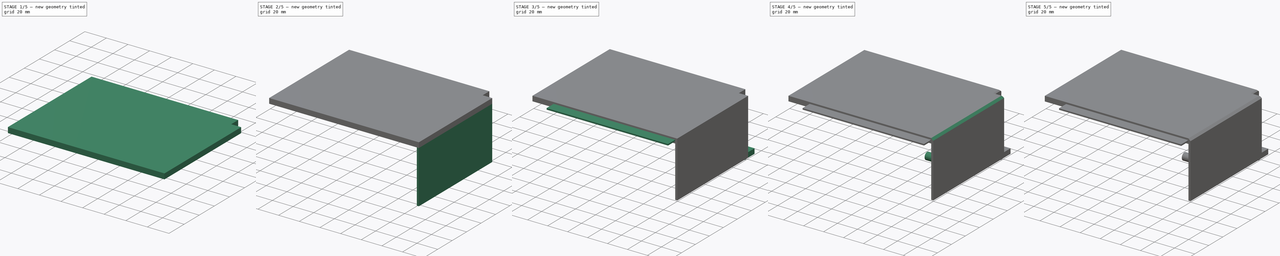
[diagram: build sequence overview — one tinted view per stage of 5, left to right]
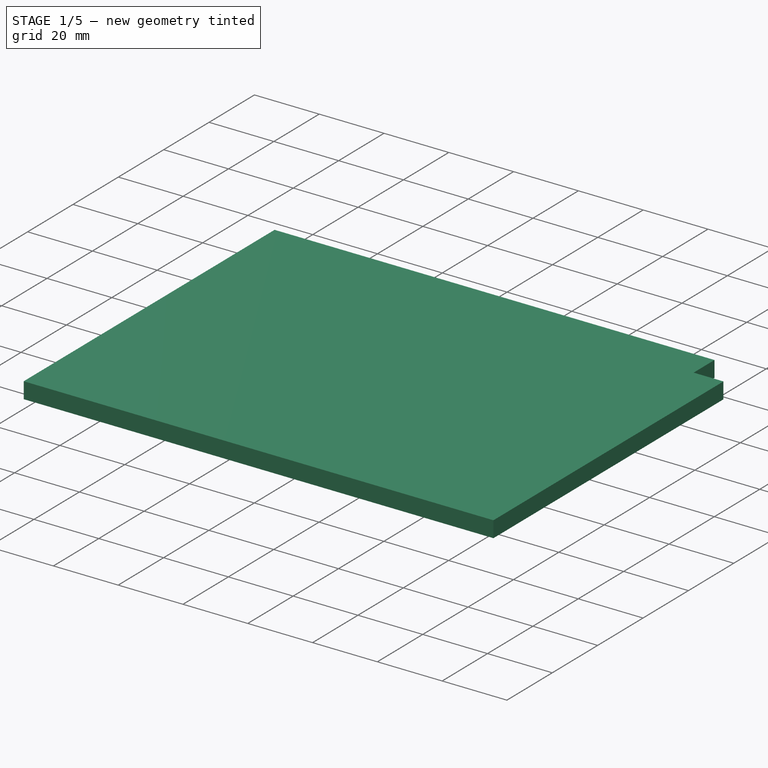
[diagram: stage 1 of 5 — iso view after this stage's code; geometry added in this stage tinted green]
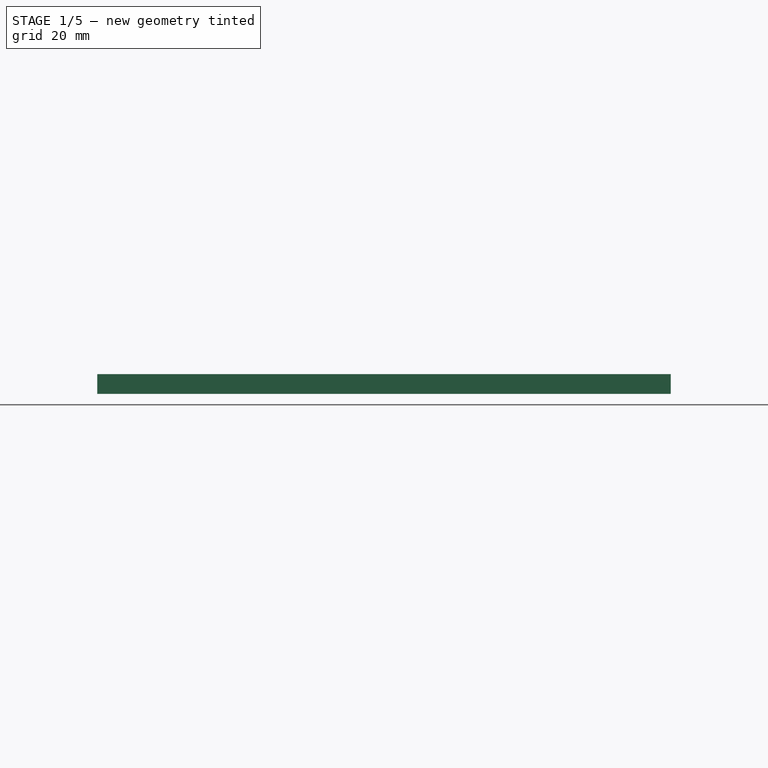
[diagram: stage 1 of 5 — front view after this stage's code; geometry added in this stage tinted green]
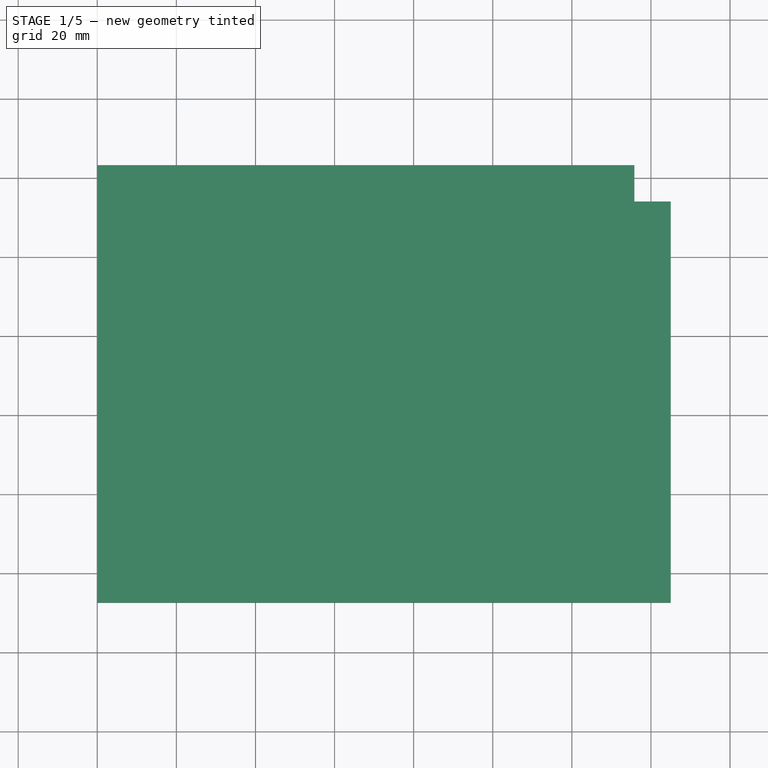
[diagram: stage 1 of 5 — top view after this stage's code; geometry added in this stage tinted green]
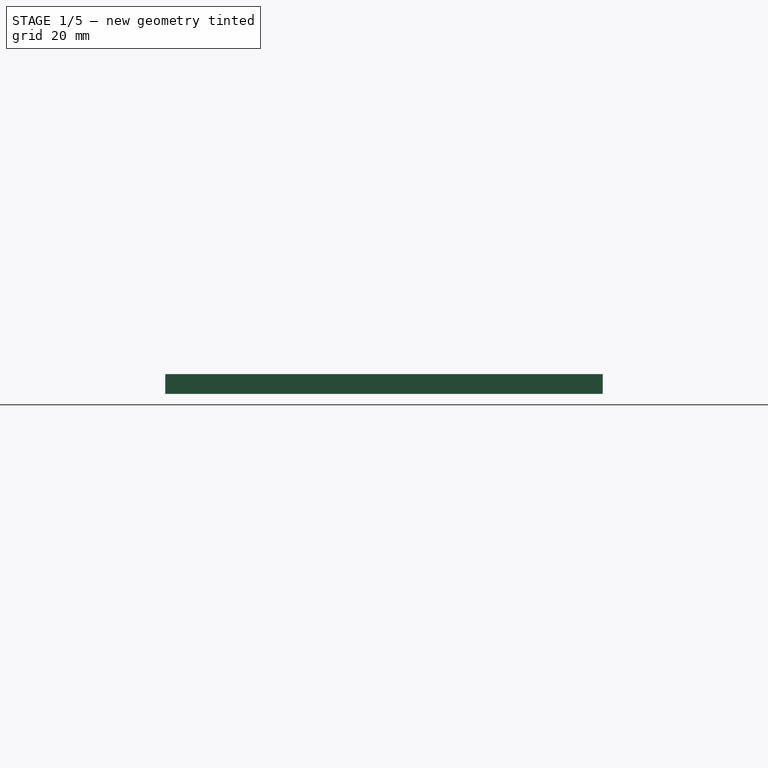
[diagram: stage 1 of 5 — right view after this stage's code; geometry added in this stage tinted green]
FCSTD DOCUMENT  (FreeCAD 2022.430R26244 +4758 (Git))
Label: FirstPartProcessorTop
License: All rights reserved
LicenseURL: http://en.wikipedia.org/wiki/All_rights_reserved
objects: Sketcher::SketchObject×15, PartDesign::Pad×11, PartDesign::Pocket×4, PartDesign::Chamfer×2, PartDesign::CoordinateSystem×1, PartDesign::Fillet×1, PartDesign::Body×1, App::Part×1
note: 71 computed .brp shape members not serialized (recipe doc carries the construction recipe); baked Part::Feature solids carry a one-line shape summary decoded from their .brp

FEATURE [PartDesign::CoordinateSystem] LCS_0
  AttacherType = Attacher::AttachEngine3D
  MapMode = 2
  Support = -> [X_Axis001]
  TreeRank = 0
FEATURE [Sketcher::SketchObject] Sketch_1
  FullyConstrained = true
  TreeRank = 0
  sketch-geometry (4):
    g0: LineSegment StartX=0 StartY=0 StartZ=0 EndX=-140 EndY=0 EndZ=0
    g1: LineSegment StartX=-140 StartY=0 StartZ=0 EndX=-140 EndY=93 EndZ=0
    g2: LineSegment StartX=-140 StartY=93 StartZ=0 EndX=0 EndY=93 EndZ=0
    g3: LineSegment StartX=0 StartY=93 StartZ=0 EndX=0 EndY=0 EndZ=0
  constraints (11):
    c: Coincident(g0,g1)
    c: Coincident(g1,g2)
    c: Coincident(g2,g3)
    c: Coincident(g3,g0)
    c: Horizontal(g0)
    c: Horizontal(g2)
    c: Vertical(g1)
    c: Vertical(g3)
    c: Coincident(g0,g-1)
    c: DistanceY(g3,g3) = 93
    c: DistanceX(g2,g2) = 140
FEATURE [PartDesign::Pad] Pad  label="MainSupport"
  AddSubType = 0
  CheckUpToFaceLimits = true
  ClaimChildren = false
  Direction = (0,0,1)
  Fit = 0
  FitJoin = 0
  InnerFit = 0
  InnerFitJoin = 0
  InnerTaperAngle = 0
  InnerTaperAngleRev = 0
  Length = 5
  Length2 = 100
  NewSolid = false
  Profile = -> Sketch_1
  Suppress = false
  TreeRank = 0
  Type = 0
  _ProfileBasedVersion = 0
FEATURE [Sketcher::SketchObject] Sketch
  ExternalGeometry = -> [Pad]
  FullyConstrained = true
  MapMode = 5
  Support = -> [XY_Plane001]
  TreeRank = 0
  sketch-geometry (4):
    g0: LineSegment StartX=0 StartY=0 StartZ=0 EndX=-140 EndY=0 EndZ=0
    g1: LineSegment StartX=-140 StartY=0 StartZ=0 EndX=-140 EndY=-7.4 EndZ=0
    g2: LineSegment StartX=-140 StartY=-7.4 StartZ=0 EndX=0 EndY=-7.4 EndZ=0
    g3: LineSegment StartX=0 StartY=-7.4 StartZ=0 EndX=0 EndY=0 EndZ=0
  constraints (10):
    c: Coincident(g0,g1)
    c: Coincident(g1,g2)
    c: Coincident(g2,g3)
    c: Coincident(g3,g0)
    c: Horizontal(g2)
    c: Vertical(g1)
    c: Vertical(g3)
    c: Coincident(g0,g-1)
    c: Coincident(g0,g-3)
    c: DistanceY(g3,g3) = 7.4
FEATURE [PartDesign::Pad] Pad001  label="ExtraGapSize"
  AddSubType = 0
  BaseFeature = -> Pad
  CheckUpToFaceLimits = true
  ClaimChildren = false
  Direction = (0,0,1)
  Fit = 0
  FitJoin = 0
  InnerFit = 0
  InnerFitJoin = 0
  InnerTaperAngle = 0
  InnerTaperAngleRev = 0
  Length = 5
  Length2 = 100
  NewSolid = false
  Profile = -> Sketch
  Suppress = false
  TreeRank = 0
  Type = 0
  _ProfileBasedVersion = 0
FEATURE [Sketcher::SketchObject] Sketch011
  ExternalGeometry = -> [Pad001]
  FullyConstrained = true
  MapMode = 5
  Placement = pos=(0,0,5) rot=(0,0,1;0rad)
  Support = -> [Pad001]
  TreeRank = 21
  sketch-geometry (6):
    g0: LineSegment StartX=-140 StartY=93 StartZ=0 EndX=-140 EndY=103.2 EndZ=0
    g1: LineSegment StartX=-140 StartY=103.2 StartZ=0 EndX=5 EndY=103.2 EndZ=0
    g2: LineSegment StartX=5 StartY=103.2 StartZ=0 EndX=5 EndY=-7.4 EndZ=0
    g3: LineSegment StartX=5 StartY=-7.4 StartZ=0 EndX=0 EndY=-7.4 EndZ=0
    g4: LineSegment StartX=0 StartY=-7.4 StartZ=0 EndX=0 EndY=93 EndZ=0
    g5: LineSegment StartX=0 StartY=93 StartZ=0 EndX=-140 EndY=93 EndZ=0
  constraints (15):
    c: Coincident(g0,g-4)
    c: Vertical(g0)
    c: Coincident(g1,g0)
    c: Horizontal(g1)
    c: Coincident(g2,g1)
    c: Vertical(g2)
    c: Coincident(g3,g2)
    c: Coincident(g3,g-3)
    c: Coincident(g4,g3)
    c: Coincident(g4,g-4)
    c: Coincident(g5,g4)
    c: Coincident(g5,g0)
    c: Horizontal(g3)
    c: DistanceY(g0,g0) = 10.2
    c: DistanceX(g3,g3) = 5
FEATURE [PartDesign::Pad] Pad005  label="ExtraSideSize"
  AddSubType = 0
  AlongSketchNormal = false
  BaseFeature = -> Pad001
  CheckUpToFaceLimits = true
  ClaimChildren = false
  Direction = (0,0,1)
  Fit = 0
  FitJoin = 0
  InnerFit = 0
  InnerFitJoin = 0
  InnerTaperAngle = 0
  InnerTaperAngleRev = 0
  Length = 5
  Length2 = 100
  Linearize = true
  NewSolid = false
  Profile = -> Sketch011
  Reversed = true
  Suppress = false
  TreeRank = 22
  Type = 0
  _ProfileBasedVersion = 1
FEATURE [Sketcher::SketchObject] Sketch002
  ExternalGeometry = -> [Pad005]
  FullyConstrained = true
  MapMode = 5
  Placement = pos=(0,0,5) rot=(0,0,1;0rad)
  TreeRank = 3
  sketch-geometry (4):
    g0: LineSegment StartX=5 StartY=103.2 StartZ=0 EndX=-4.2 EndY=103.2 EndZ=0
    g1: LineSegment StartX=-4.2 StartY=103.2 StartZ=0 EndX=-4.2 EndY=94 EndZ=0
    g2: LineSegment StartX=-4.2 StartY=94 StartZ=0 EndX=5 EndY=94 EndZ=0
    g3: LineSegment StartX=5 StartY=94 StartZ=0 EndX=5 EndY=103.2 EndZ=0
  constraints (11):
    c: Coincident(g0,g1)
    c: Coincident(g1,g2)
    c: Coincident(g2,g3)
    c: Coincident(g3,g0)
    c: Horizontal(g0)
    c: Horizontal(g2)
    c: Vertical(g1)
    c: Vertical(g3)
    c: Coincident(g0,g-3)
    c: Equal(g2,g1)
    c: DistanceX(g2,g2) = 9.2
FEATURE [PartDesign::Pocket] Pocket  label="ColumnPartHole"
  AddSubType = 1
  BaseFeature = -> Pad005
  CheckUpToFaceLimits = true
  ClaimChildren = false
  Fit = 0
  FitJoin = 0
  InnerFit = 0
  InnerFitJoin = 0
  InnerTaperAngle = 0
  InnerTaperAngleRev = 0
  Length = 5
  Length2 = 100
  Linearize = true
  NewSolid = false
  Profile = -> Sketch002
  Suppress = false
  TreeRank = 4
  Type = 0
  _ProfileBasedVersion = 1
  _Version = 1
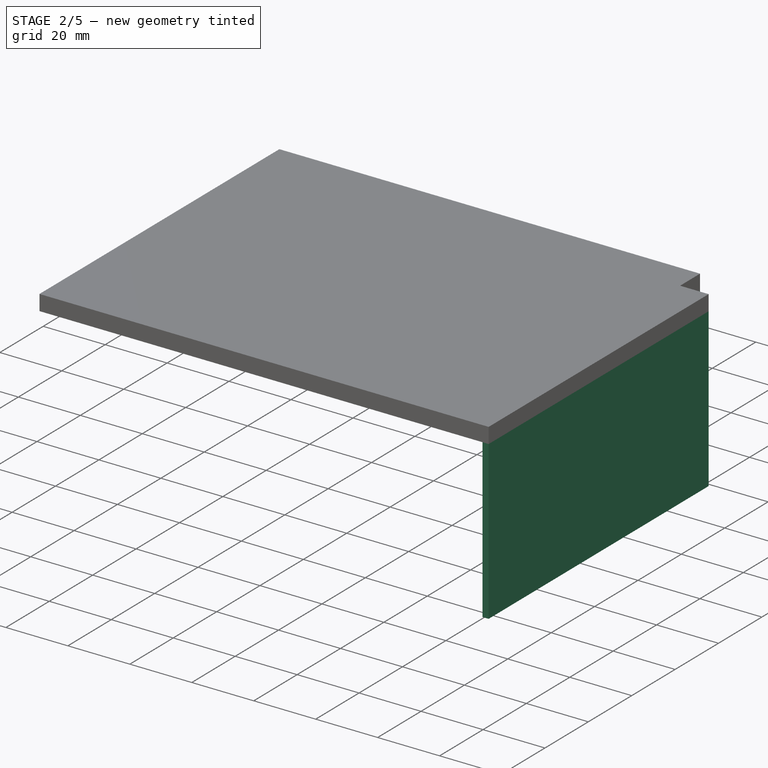
[diagram: stage 2 of 5 — iso view after this stage's code; geometry added in this stage tinted green]
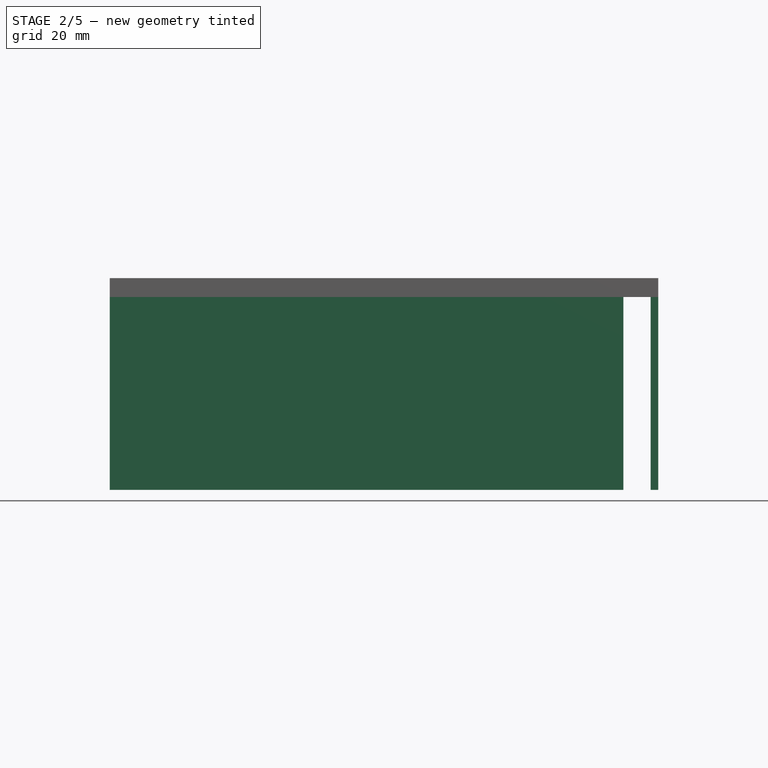
[diagram: stage 2 of 5 — front view after this stage's code; geometry added in this stage tinted green]
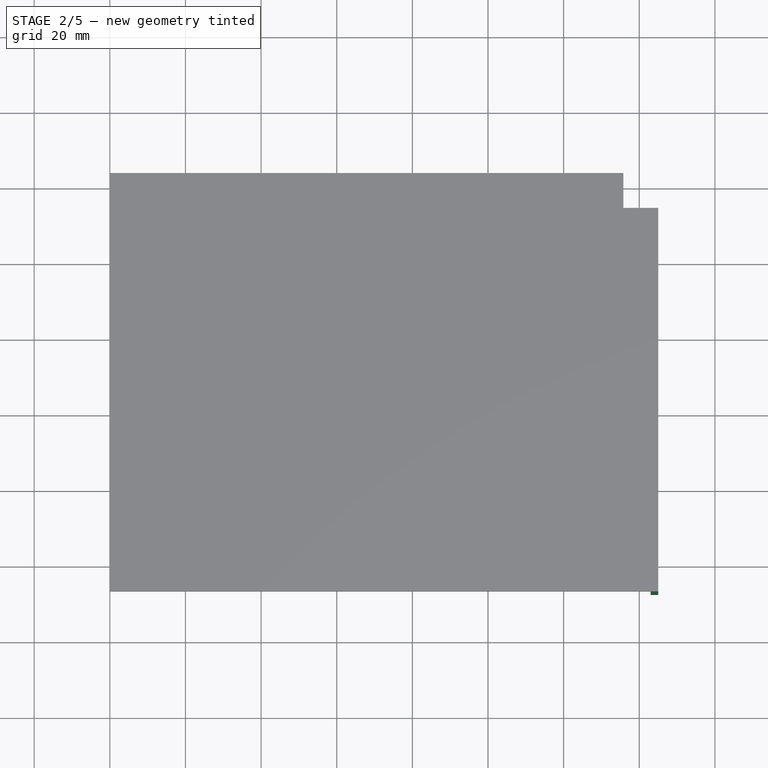
[diagram: stage 2 of 5 — top view after this stage's code; geometry added in this stage tinted green]
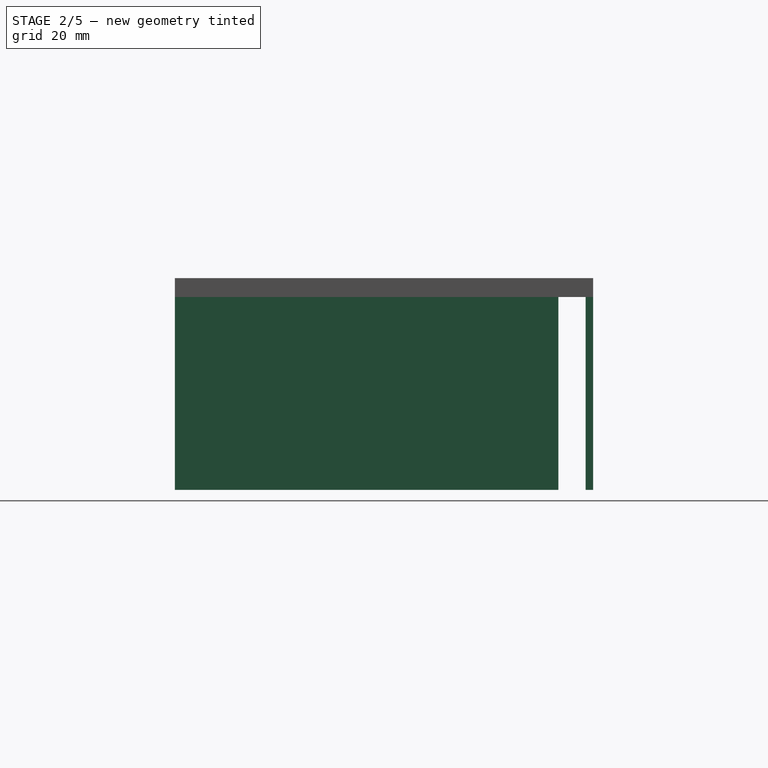
[diagram: stage 2 of 5 — right view after this stage's code; geometry added in this stage tinted green]
FEATURE [Sketcher::SketchObject] Sketch004
  ExternalGeometry = -> [Pocket]
  FullyConstrained = true
  MapMode = 5
  Placement = pos=(0,0,0) rot=(1,0,0;3.14159rad)
  TreeRank = 7
  sketch-geometry (4):
    g0: LineSegment StartX=5 StartY=-94 StartZ=0 EndX=3 EndY=-94 EndZ=0
    g1: LineSegment StartX=3 StartY=-94 StartZ=0 EndX=3 EndY=7.4 EndZ=0
    g2: LineSegment StartX=3 StartY=7.4 StartZ=0 EndX=5 EndY=7.4 EndZ=0
    g3: LineSegment StartX=5 StartY=7.4 StartZ=0 EndX=5 EndY=-94 EndZ=0
  constraints (10):
    c: Coincident(g0,g1)
    c: Coincident(g1,g2)
    c: Coincident(g2,g3)
    c: Coincident(g3,g0)
    c: Horizontal(g0)
    c: Horizontal(g2)
    c: Vertical(g1)
    c: Coincident(g0,g-3)
    c: Coincident(g2,g-3)
    c: DistanceX(g0,g0) = 2
FEATURE [PartDesign::Pad] Pad004  label="SidePanel"
  AddSubType = 0
  AlongSketchNormal = false
  BaseFeature = -> Pocket
  CheckUpToFaceLimits = true
  ClaimChildren = false
  Direction = (0,0,-1)
  Fit = 0
  FitJoin = 0
  InnerFit = 0
  InnerFitJoin = 0
  InnerTaperAngle = 0
  InnerTaperAngleRev = 0
  Length = 51
  Length2 = 100
  Linearize = true
  NewSolid = false
  Profile = -> Sketch004
  Suppress = false
  TreeRank = 8
  Type = 0
  _ProfileBasedVersion = 1
FEATURE [Sketcher::SketchObject] Sketch010
  ExternalGeometry = -> [Pad004]
  FullyConstrained = true
  MapMode = 5
  Placement = pos=(-140,0,0) rot=(0.57735,-0.57735,-0.57735;2.0944rad)
  TreeRank = 19
  sketch-geometry (4):
    g0: LineSegment StartX=-101.25 StartY=3.58 StartZ=0 EndX=-13.55 EndY=3.58 EndZ=0
    g1: LineSegment StartX=-13.55 StartY=3.58 StartZ=0 EndX=-13.55 EndY=1.5 EndZ=0
    g2: LineSegment StartX=-13.55 StartY=1.5 StartZ=0 EndX=-101.25 EndY=1.5 EndZ=0
    g3: LineSegment StartX=-101.25 StartY=1.5 StartZ=0 EndX=-101.25 EndY=3.58 EndZ=0
  constraints (12):
    c: Coincident(g0,g1)
    c: Coincident(g1,g2)
    c: Coincident(g2,g3)
    c: Coincident(g3,g0)
    c: Horizontal(g0)
    c: Horizontal(g2)
    c: Vertical(g1)
    c: Vertical(g3)
    c: DistanceX(g-3,g0) = 1.95
    c: DistanceX(g0,g-4) = 20.95
    c: DistanceY(g1,g1) = 2.08
    c: DistanceY(g-4,g1) = 1.5
FEATURE [PartDesign::Pocket] Pocket003  label="PuzzleHole1"
  AddSubType = 1
  BaseFeature = -> Pad004
  CheckUpToFaceLimits = true
  ClaimChildren = false
  Fit = 0
  FitJoin = 0
  InnerFit = 0
  InnerFitJoin = 0
  InnerTaperAngle = 0
  InnerTaperAngleRev = 0
  Length = 11
  Length2 = 100
  Linearize = true
  NewSolid = false
  Profile = -> Sketch010
  Suppress = false
  TreeRank = 20
  Type = 0
  _ProfileBasedVersion = 1
  _Version = 1
FEATURE [Sketcher::SketchObject] Sketch012
  ExternalGeometry = -> [Pocket003]
  FullyConstrained = true
  MapMode = 5
  Placement = pos=(0,0,0) rot=(1,0,0;3.14159rad)
  Support = -> [Pocket003]
  TreeRank = 23
  sketch-geometry (4):
    g0: LineSegment StartX=-140 StartY=-103.2 StartZ=0 EndX=-4.2 EndY=-103.2 EndZ=0
    g1: LineSegment StartX=-4.2 StartY=-103.2 StartZ=0 EndX=-4.2 EndY=-101.2 EndZ=0
    g2: LineSegment StartX=-4.2 StartY=-101.2 StartZ=0 EndX=-140 EndY=-101.2 EndZ=0
    g3: LineSegment StartX=-140 StartY=-101.2 StartZ=0 EndX=-140 EndY=-103.2 EndZ=0
  constraints (10):
    c: Coincident(g0,g1)
    c: Coincident(g1,g2)
    c: Coincident(g2,g3)
    c: Coincident(g3,g0)
    c: Horizontal(g2)
    c: Vertical(g1)
    c: Vertical(g3)
    c: Coincident(g0,g-3)
    c: Coincident(g-3,g0)
    c: DistanceY(g3,g3) = 2
FEATURE [PartDesign::Pad] Pad006  label="BackPanel"
  AddSubType = 0
  AlongSketchNormal = false
  BaseFeature = -> Pocket003
  CheckUpToFaceLimits = true
  ClaimChildren = false
  Direction = (0,0,-1)
  Fit = 0
  FitJoin = 0
  InnerFit = 0
  InnerFitJoin = 0
  InnerTaperAngle = 0
  InnerTaperAngleRev = 0
  Length = 51
  Length2 = 100
  Linearize = true
  NewSolid = false
  Profile = -> Sketch012
  Suppress = false
  TreeRank = 24
  Type = 0
  _ProfileBasedVersion = 1
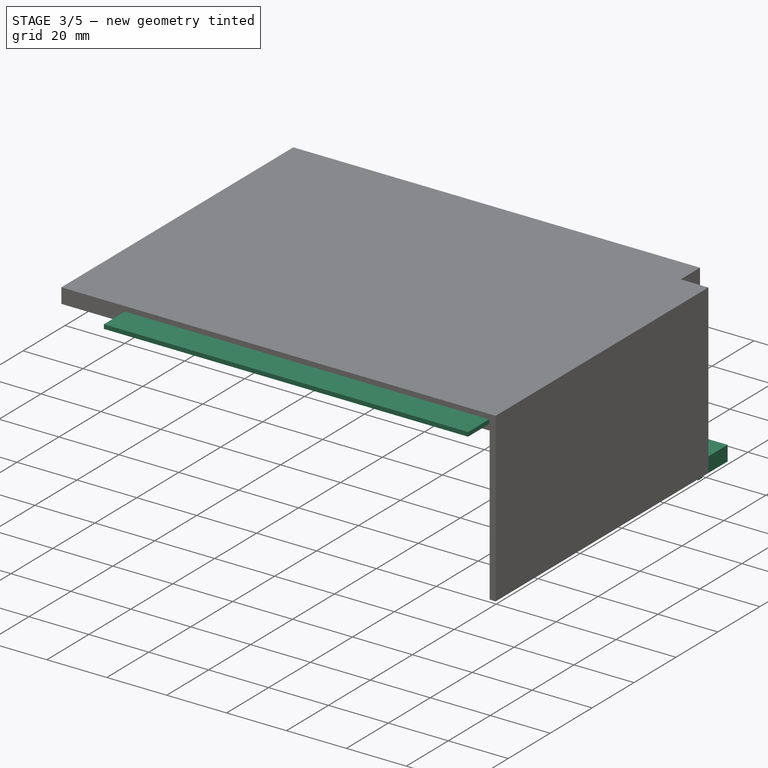
[diagram: stage 3 of 5 — iso view after this stage's code; geometry added in this stage tinted green]
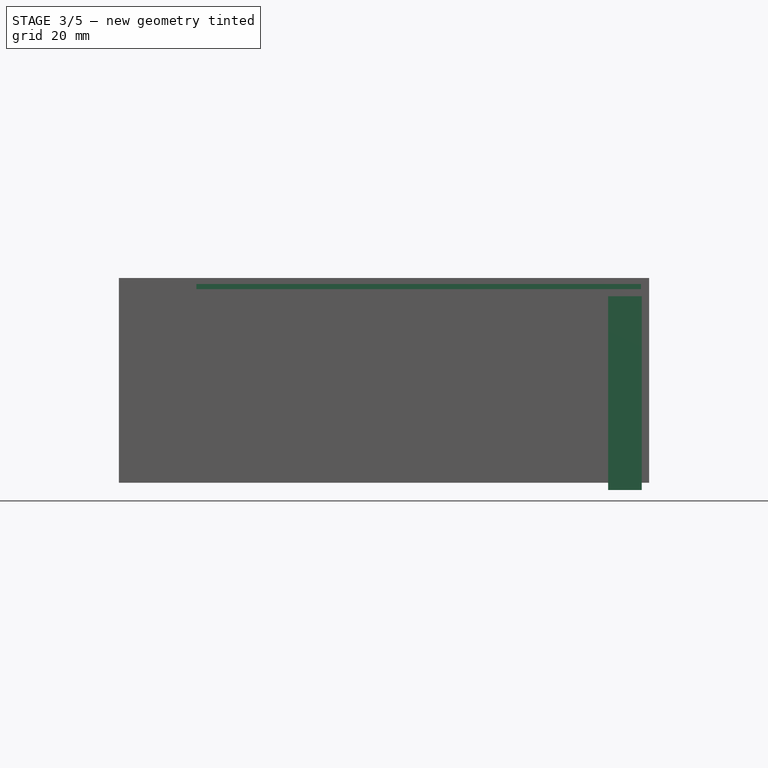
[diagram: stage 3 of 5 — front view after this stage's code; geometry added in this stage tinted green]
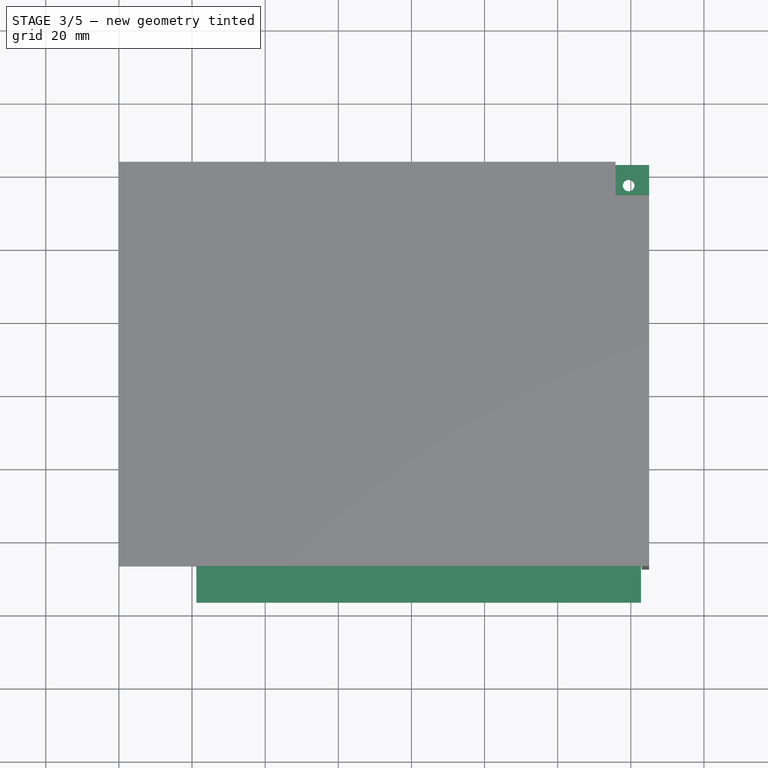
[diagram: stage 3 of 5 — top view after this stage's code; geometry added in this stage tinted green]
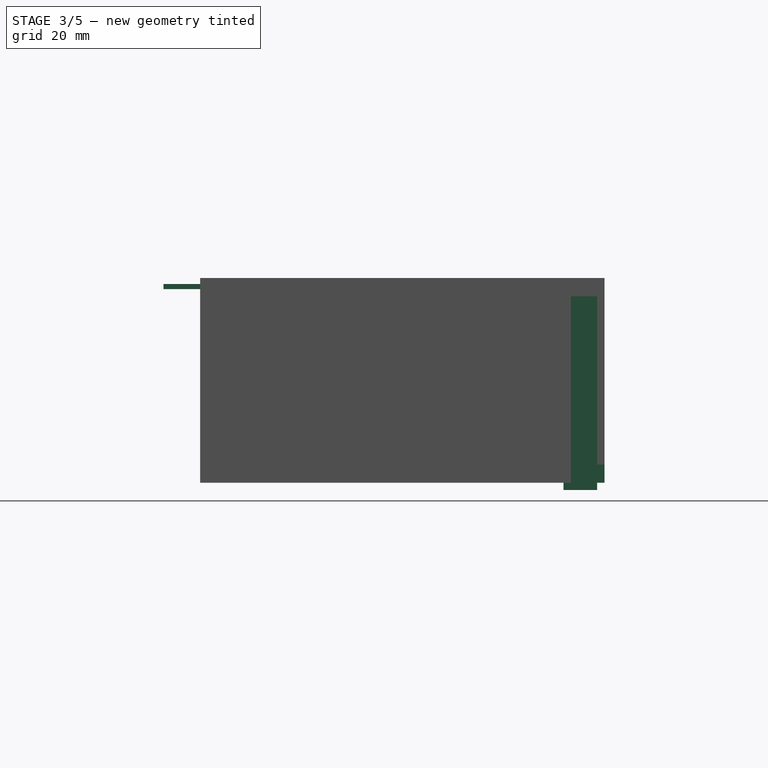
[diagram: stage 3 of 5 — right view after this stage's code; geometry added in this stage tinted green]
FEATURE [Sketcher::SketchObject] Sketch013
  ExternalGeometry = -> [Pad006]
  FullyConstrained = true
  MapMode = 5
  Placement = pos=(0,0,0) rot=(1,0,0;3.14159rad)
  Support = -> [Pad006]
  TreeRank = 25
  sketch-geometry (6):
    g0: LineSegment StartX=-4.2 StartY=-101.2 StartZ=0 EndX=-6.2 EndY=-101.2 EndZ=0
    g1: LineSegment StartX=-6.2 StartY=-101.2 StartZ=0 EndX=-6.2 EndY=-92 EndZ=0
    g2: LineSegment StartX=-6.2 StartY=-92 StartZ=0 EndX=3 EndY=-92 EndZ=0
    g3: LineSegment StartX=3 StartY=-92 StartZ=0 EndX=3 EndY=-94 EndZ=0
    g4: LineSegment StartX=-4.2 StartY=-101.2 StartZ=0 EndX=-4.2 EndY=-94 EndZ=0
    g5: LineSegment StartX=-4.2 StartY=-94 StartZ=0 EndX=3 EndY=-94 EndZ=0
  constraints (15):
    c: Coincident(g0,g-4)
    c: Horizontal(g0)
    c: Coincident(g1,g0)
    c: Vertical(g1)
    c: Coincident(g2,g1)
    c: Horizontal(g2)
    c: Coincident(g3,g2)
    c: Coincident(g3,g-3)
    c: Vertical(g3)
    c: DistanceY(g3,g3) = 2
    c: Equal(g3,g0)
    c: Coincident(g4,g0)
    c: Coincident(g4,g-4)
    c: Coincident(g5,g4)
    c: Coincident(g5,g3)
FEATURE [PartDesign::Pad] Pad007  label="ColumnPartPanel"
  AddSubType = 0
  AlongSketchNormal = false
  BaseFeature = -> Pad006
  CheckUpToFaceLimits = true
  ClaimChildren = false
  Direction = (0,0,-1)
  Fit = 0
  FitJoin = 0
  InnerFit = 0
  InnerFitJoin = 0
  InnerTaperAngle = 0
  InnerTaperAngleRev = 0
  Length = 53
  Length2 = 100
  Linearize = true
  NewSolid = false
  Profile = -> Sketch013
  Suppress = false
  TreeRank = 26
  Type = 0
  _ProfileBasedVersion = 1
FEATURE [Sketcher::SketchObject] Sketch014
  ExternalGeometry = -> [Pad007]
  FullyConstrained = true
  MapMode = 5
  Placement = pos=(0,94,0) rot=(0,0.707107,0.707107;3.14159rad)
  Support = -> [Pad007]
  TreeRank = 27
  sketch-geometry (4):
    g0: LineSegment StartX=-5 StartY=-51 StartZ=0 EndX=4.2 EndY=-51 EndZ=0
    g1: LineSegment StartX=4.2 StartY=-51 StartZ=0 EndX=4.2 EndY=-46 EndZ=0
    g2: LineSegment StartX=4.2 StartY=-46 StartZ=0 EndX=-5 EndY=-46 EndZ=0
    g3: LineSegment StartX=-5 StartY=-46 StartZ=0 EndX=-5 EndY=-51 EndZ=0
  constraints (11):
    c: Coincident(g0,g1)
    c: Coincident(g1,g2)
    c: Coincident(g2,g3)
    c: Coincident(g3,g0)
    c: Horizontal(g0)
    c: Horizontal(g2)
    c: Vertical(g1)
    c: Vertical(g3)
    c: Coincident(g0,g-3)
    c: PointOnObject(g1,g-4)
    c: DistanceY(g3,g3) = 5
FEATURE [PartDesign::Pad] Pad008  label="HoleSupport"
  AddSubType = 0
  AlongSketchNormal = false
  BaseFeature = -> Pad007
  CheckUpToFaceLimits = true
  ClaimChildren = false
  Direction = (0,1,-2e-16)
  Fit = 0
  FitJoin = 0
  InnerFit = 0
  InnerFitJoin = 0
  InnerTaperAngle = 0
  InnerTaperAngleRev = 0
  Length = 10
  Length2 = 100
  Linearize = true
  NewSolid = false
  Profile = -> Sketch014
  Suppress = false
  TreeRank = 28
  Type = 3
  UpToFace = -> Pad007 [Face30]
  _ProfileBasedVersion = 1
FEATURE [Sketcher::SketchObject] Sketch015
  ExternalGeometry = -> [Pad008]
  FullyConstrained = true
  MapMode = 5
  Placement = pos=(0,-1.02e-14,-46) rot=(0,0,1;0rad)
  Support = -> [Pad008]
  TreeRank = 29
  sketch-geometry (3):
    g0: LineSegment [constr] StartX=-4.2 StartY=97.6 StartZ=0 EndX=-0.6 EndY=97.6 EndZ=0
    g1: LineSegment [constr] StartX=-0.6 StartY=97.6 StartZ=0 EndX=-0.6 EndY=94 EndZ=0
    g2: Circle CenterX=-0.6 CenterY=97.6 CenterZ=0 NormalX=0 NormalY=0 NormalZ=1 AngleXU=0 Radius=1.6
  constraints (9):
    c: PointOnObject(g0,g-3)
    c: Horizontal(g0)
    c: Coincident(g1,g0)
    c: PointOnObject(g1,g-4)
    c: Vertical(g1)
    c: DistanceY(g-4,g0) = 3.6
    c: DistanceX(g-4,g1) = 3.6
    c: Coincident(g2,g0)
    c: Diameter(g2) = 3.2
FEATURE [PartDesign::Pocket] Pocket004  label="Hole"
  AddSubType = 1
  BaseFeature = -> Pad008
  CheckUpToFaceLimits = true
  ClaimChildren = false
  Fit = 0
  FitJoin = 0
  InnerFit = 0
  InnerFitJoin = 0
  InnerTaperAngle = 0
  InnerTaperAngleRev = 0
  Length = 5
  Length2 = 100
  Linearize = true
  NewSolid = false
  Profile = -> Sketch015
  Suppress = false
  TreeRank = 30
  Type = 2
  _ProfileBasedVersion = 1
  _Version = 1
FEATURE [Sketcher::SketchObject] Sketch016
  ExternalGeometry = -> [Pocket004]
  FullyConstrained = true
  MapMode = 5
  Placement = pos=(0,-7.4,0) rot=(1,0,0;1.5708rad)
  Support = -> [Pocket004]
  TreeRank = 31
  sketch-geometry (4):
    g0: LineSegment StartX=-118.8 StartY=3.34 StartZ=0 EndX=2.8 EndY=3.34 EndZ=0
    g1: LineSegment StartX=2.8 StartY=3.34 StartZ=0 EndX=2.8 EndY=1.94 EndZ=0
    g2: LineSegment StartX=2.8 StartY=1.94 StartZ=0 EndX=-118.8 EndY=1.94 EndZ=0
    g3: LineSegment StartX=-118.8 StartY=1.94 StartZ=0 EndX=-118.8 EndY=3.34 EndZ=0
  constraints (12):
    c: Coincident(g0,g1)
    c: Coincident(g1,g2)
    c: Coincident(g2,g3)
    c: Coincident(g3,g0)
    c: Horizontal(g0)
    c: Horizontal(g2)
    c: Vertical(g1)
    c: Vertical(g3)
    c: DistanceX(g0,g-3) = 2.2
    c: DistanceY(g1,g1) = 1.4
    c: DistanceX(g-4,g0) = 21.2
    c: DistanceY(g-4,g2) = 1.94
FEATURE [PartDesign::Pad] Pad009  label="Puzzle1"
  AddSubType = 0
  AlongSketchNormal = false
  BaseFeature = -> Pocket004
  CheckUpToFaceLimits = true
  ClaimChildren = false
  Direction = (0,-1,2e-16)
  Fit = 0
  FitJoin = 0
  InnerFit = 0
  InnerFitJoin = 0
  InnerTaperAngle = 0
  InnerTaperAngleRev = 0
  Length = 10
  Length2 = 100
  Linearize = true
  NewSolid = false
  Profile = -> Sketch016
  Suppress = false
  TreeRank = 32
  Type = 0
  _ProfileBasedVersion = 1
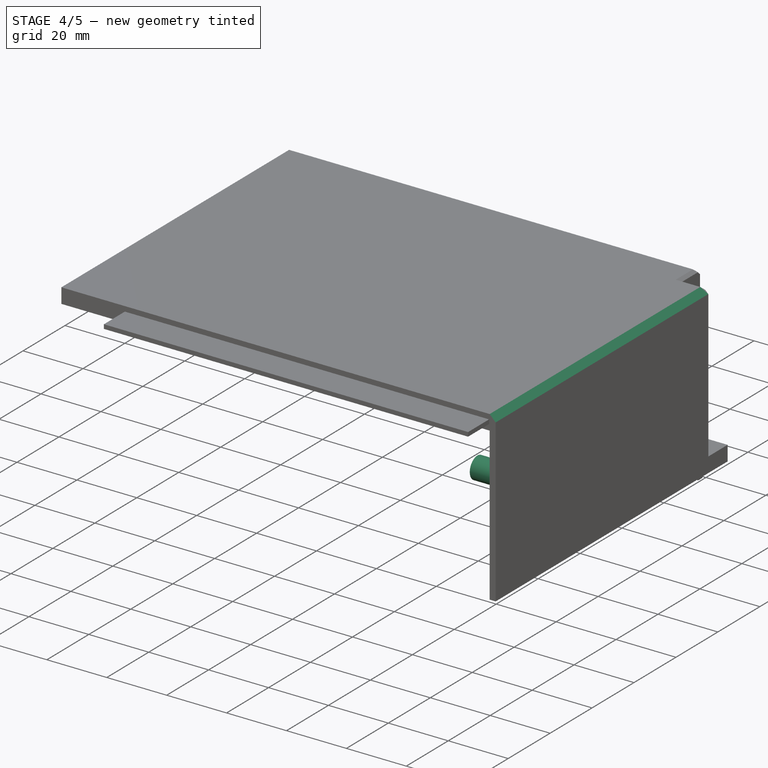
[diagram: stage 4 of 5 — iso view after this stage's code; geometry added in this stage tinted green]
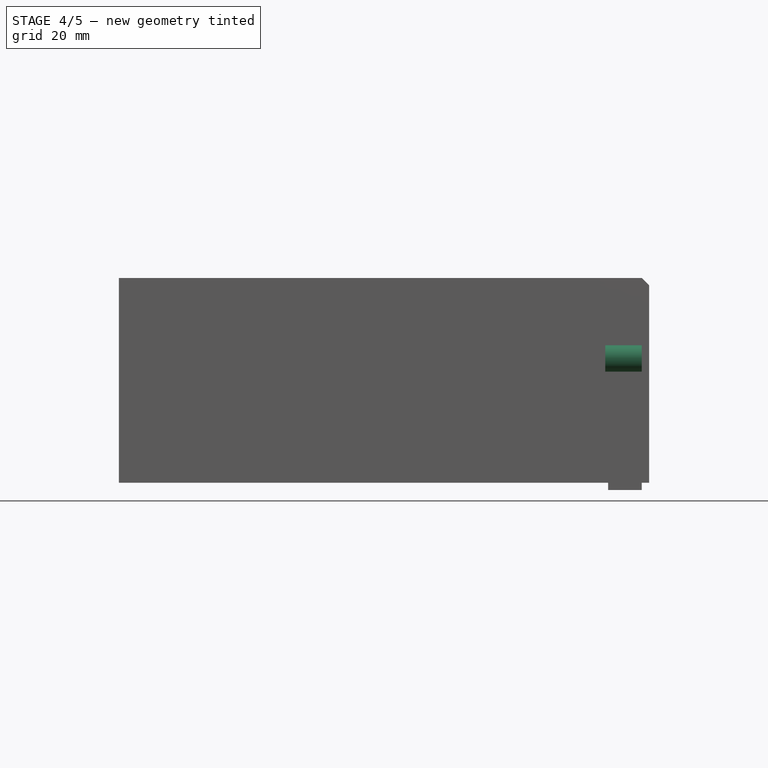
[diagram: stage 4 of 5 — front view after this stage's code; geometry added in this stage tinted green]
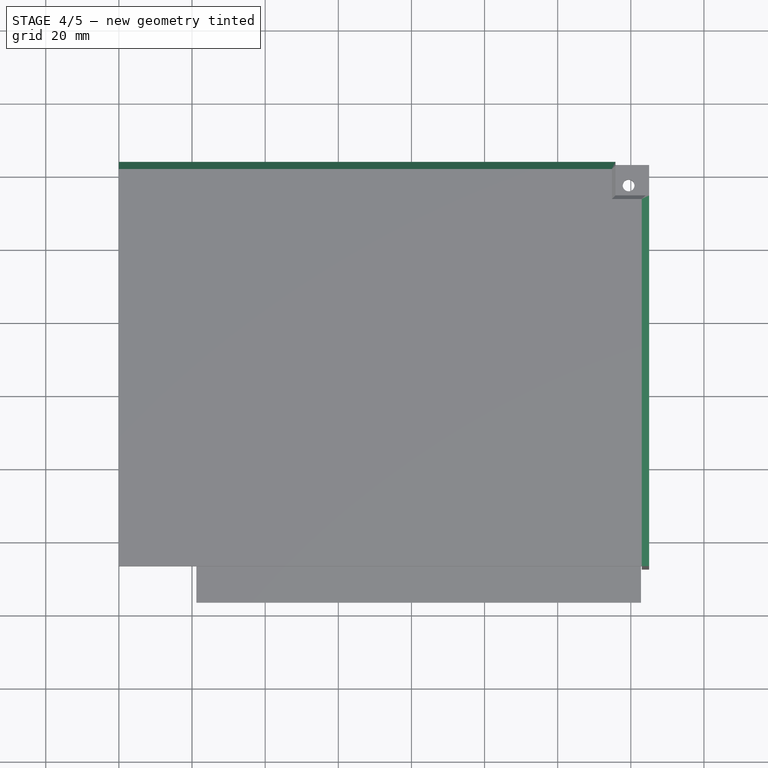
[diagram: stage 4 of 5 — top view after this stage's code; geometry added in this stage tinted green]
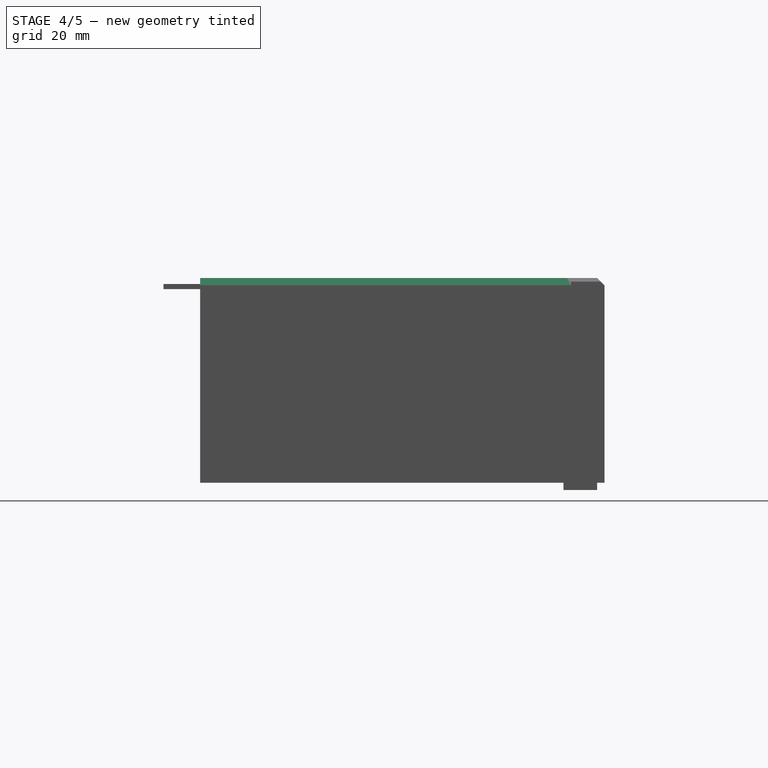
[diagram: stage 4 of 5 — right view after this stage's code; geometry added in this stage tinted green]
FEATURE [PartDesign::Chamfer] Chamfer
  AddSubType = 0
  Angle = 45
  Base = -> Pad009 [Edge52,Edge49]
  BaseFeature = -> Pad009
  ChamferType = 0
  FlipDirection = false
  NewSolid = false
  Size = 2
  Size2 = 1
  SupportTransform = false
  Suppress = false
  TreeRank = 33
FEATURE [PartDesign::Chamfer] Chamfer001
  AddSubType = 0
  Angle = 45
  Base = -> Chamfer [Edge13,Edge15]
  BaseFeature = -> Chamfer
  ChamferType = 0
  FlipDirection = false
  NewSolid = false
  Size = 0.99
  Size2 = 1
  SupportTransform = false
  Suppress = false
  TreeRank = 34
FEATURE [Sketcher::SketchObject] Sketch017
  ExternalGeometry = -> [Chamfer001]
  FullyConstrained = true
  MapMode = 5
  Placement = pos=(3,0,0) rot=(0.57735,-0.57735,-0.57735;2.0944rad)
  Support = -> [Chamfer001]
  TreeRank = 35
  sketch-geometry (3):
    g0: LineSegment [constr] StartX=-88 StartY=-17 StartZ=0 EndX=-1 EndY=-17 EndZ=0
    g1: Circle CenterX=-88 CenterY=-17 CenterZ=0 NormalX=0 NormalY=0 NormalZ=1 AngleXU=0 Radius=3.6
    g2: Circle CenterX=-1 CenterY=-17 CenterZ=0 NormalX=0 NormalY=0 NormalZ=1 AngleXU=0 Radius=3.6
  constraints (8):
    c: Horizontal(g0)
    c: DistanceY(g-3,g0) = 34
    c: Coincident(g1,g0)
    c: Coincident(g2,g0)
    c: Diameter(g2) = 7.2
    c: Diameter(g1) = 7.2
    c: DistanceX(g0,g0) = 87
    c: DistanceX(g-3,g1) = 4
FEATURE [PartDesign::Pad] Pad010  label="PowerSupplyColumn"
  AddSubType = 0
  AlongSketchNormal = false
  BaseFeature = -> Chamfer001
  CheckUpToFaceLimits = true
  ClaimChildren = false
  Direction = (-1,0,0)
  Fit = 0
  FitJoin = 0
  InnerFit = 0
  InnerFitJoin = 0
  InnerTaperAngle = 0
  InnerTaperAngleRev = 0
  Length = 10
  Length2 = 100
  Linearize = true
  NewSolid = false
  Profile = -> Sketch017
  Suppress = false
  TreeRank = 36
  Type = 0
  _ProfileBasedVersion = 1
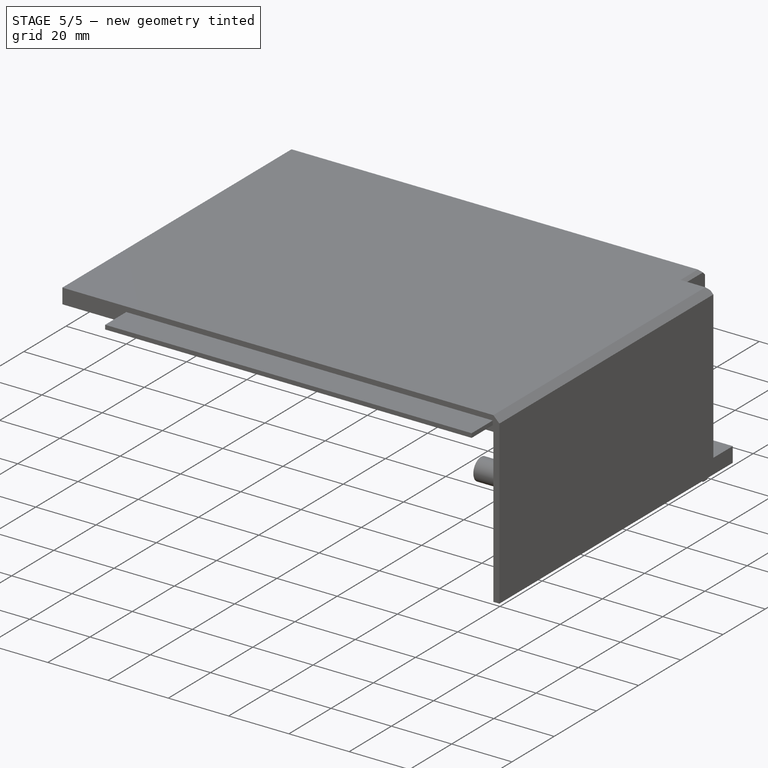
[diagram: stage 5 of 5 — iso view after this stage's code; geometry added in this stage tinted green]
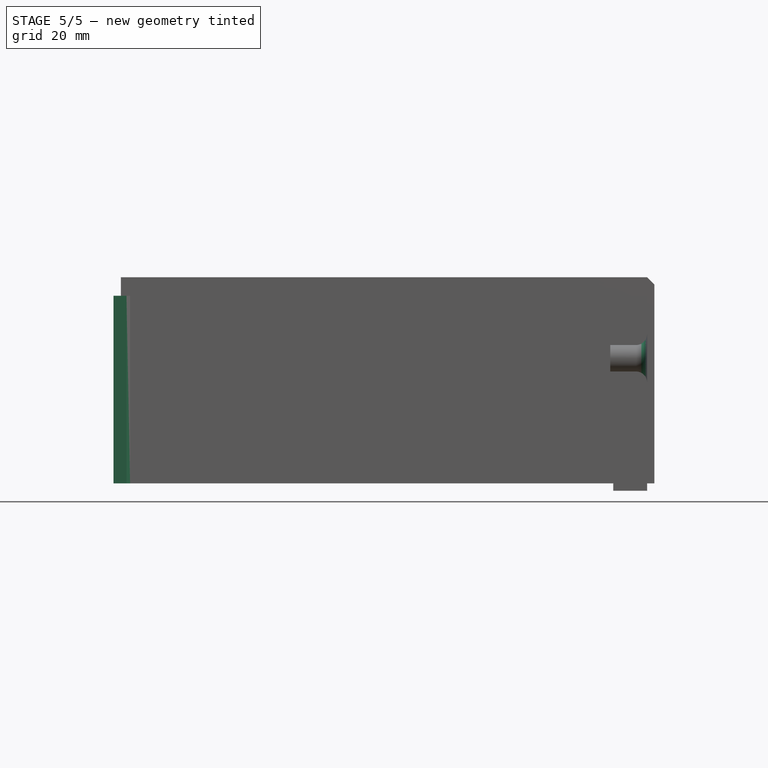
[diagram: stage 5 of 5 — front view after this stage's code; geometry added in this stage tinted green]
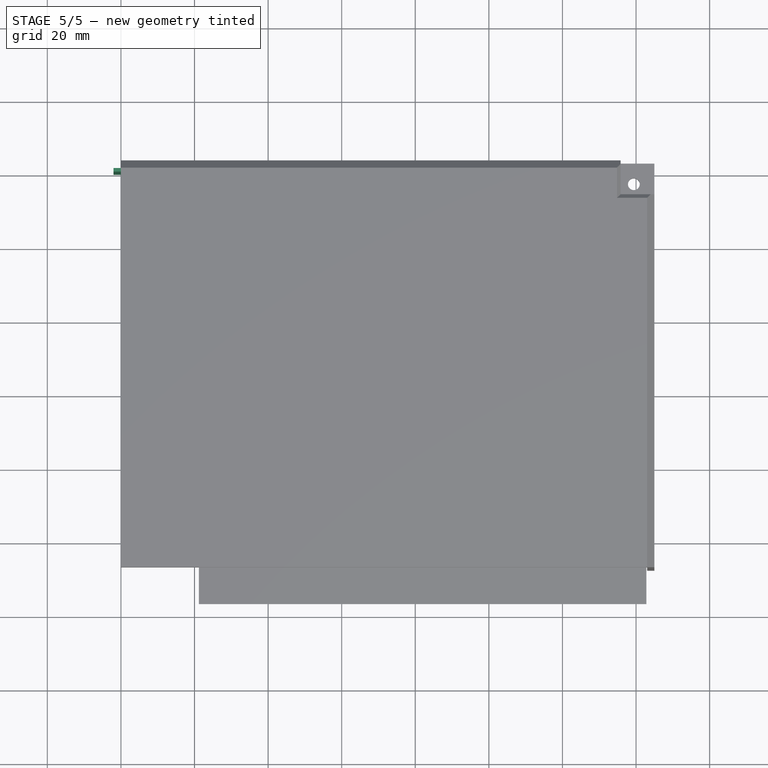
[diagram: stage 5 of 5 — top view after this stage's code; geometry added in this stage tinted green]
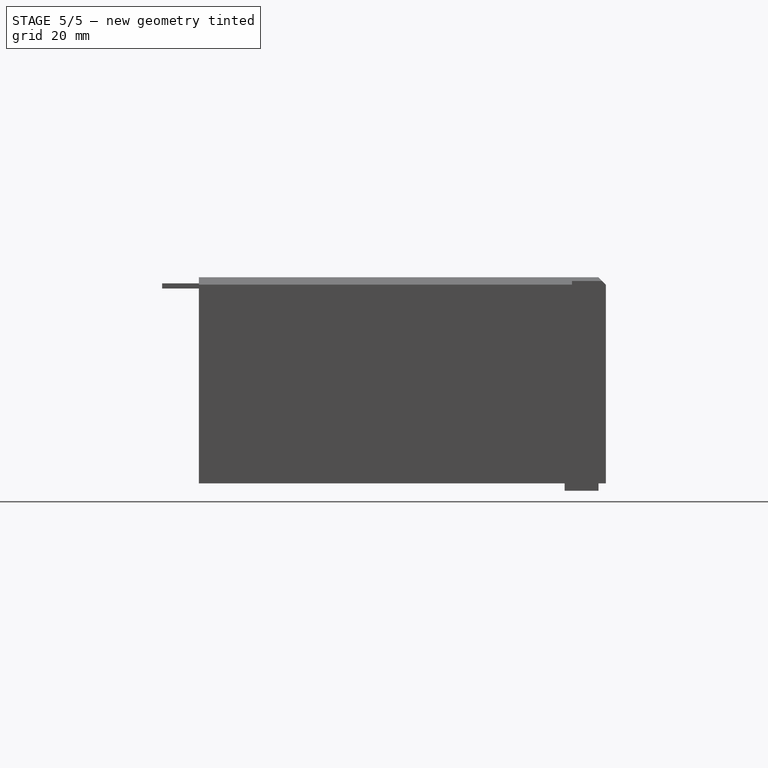
[diagram: stage 5 of 5 — right view after this stage's code; geometry added in this stage tinted green]
FEATURE [Sketcher::SketchObject] Sketch018
  ExternalGeometry = -> [Pad010]
  FullyConstrained = true
  MapMode = 5
  Placement = pos=(3,0,0) rot=(0.57735,-0.57735,-0.57735;2.0944rad)
  Support = -> [Pad010]
  TreeRank = 37
  sketch-geometry (6):
    g0: LineSegment StartX=-85.0067 StartY=-15 StartZ=0 EndX=-3.99333 EndY=-15 EndZ=0
    g1: LineSegment StartX=-85.0067 StartY=-19 StartZ=0 EndX=-3.99333 EndY=-19 EndZ=0
    g2: LineSegment [constr] StartX=-85.0067 StartY=-15 StartZ=0 EndX=-85.0067 EndY=-19 EndZ=0
    g3: LineSegment [constr] StartX=-3.99333 StartY=-15 StartZ=0 EndX=-3.99333 EndY=-19 EndZ=0
    g4: ArcOfCircle CenterX=-88 CenterY=-17 CenterZ=0 NormalX=0 NormalY=0 NormalZ=1 AngleXU=0 Radius=3.6 StartAngle=5.69415 EndAngle=6.87222
    g5: ArcOfCircle CenterX=-1 CenterY=-17 CenterZ=0 NormalX=0 NormalY=0 NormalZ=1 AngleXU=0 Radius=3.6 StartAngle=2.55256 EndAngle=3.73062
  constraints (16):
    c: PointOnObject(g0,g-3)
    c: PointOnObject(g0,g-4)
    c: Horizontal(g0)
    c: Horizontal(g1)
    c: Coincident(g2,g0)
    c: Coincident(g2,g1)
    c: Vertical(g2)
    c: Coincident(g3,g0)
    c: Coincident(g3,g1)
    c: Coincident(g4,g-3)
    c: Coincident(g4,g0)
    c: Coincident(g4,g1)
    c: Coincident(g5,g-4)
    c: Coincident(g5,g0)
    c: Coincident(g5,g1)
    c: DistanceY(g2,g2) = 4
FEATURE [PartDesign::Pad] Pad011  label="PowerSupplyColumnSupport"
  AddSubType = 0
  AlongSketchNormal = false
  BaseFeature = -> Pad010
  CheckUpToFaceLimits = true
  ClaimChildren = false
  Direction = (-1,0,0)
  Fit = 0
  FitJoin = 0
  InnerFit = 0
  InnerFitJoin = 0
  InnerTaperAngle = 0
  InnerTaperAngleRev = 0
  Length = 5
  Length2 = 100
  Linearize = true
  NewSolid = false
  Profile = -> Sketch018
  Suppress = false
  TreeRank = 38
  Type = 0
  _ProfileBasedVersion = 1
FEATURE [PartDesign::Fillet] Fillet
  AddSubType = 0
  Base = -> Pad011 [Edge116,Edge115,Edge117,Edge119,Edge118]
  BaseFeature = -> Pad011
  NewSolid = false
  Radius = 3
  SupportTransform = false
  Suppress = false
  TreeRank = 39
FEATURE [Sketcher::SketchObject] Sketch019
  ExternalGeometry = -> [Fillet]
  FullyConstrained = true
  MapMode = 5
  Placement = pos=(-7,0,0) rot=(-0.57735,0.57735,0.57735;4.18879rad)
  Support = -> [Fillet]
  TreeRank = 40
  sketch-geometry (2):
    g0: Circle CenterX=-88 CenterY=-17 CenterZ=0 NormalX=0 NormalY=0 NormalZ=1 AngleXU=0 Radius=2
    g1: Circle CenterX=-1 CenterY=-17 CenterZ=0 NormalX=0 NormalY=0 NormalZ=1 AngleXU=0 Radius=2
  constraints (4):
    c: Coincident(g0,g-4)
    c: Coincident(g1,g-3)
    c: Diameter(g0) = 4
    c: Diameter(g1) = 4
FEATURE [PartDesign::Pocket] Pocket005  label="InsertsHole"
  AddSubType = 1
  BaseFeature = -> Fillet
  CheckUpToFaceLimits = true
  ClaimChildren = false
  Fit = 0
  FitJoin = 0
  InnerFit = 0
  InnerFitJoin = 0
  InnerTaperAngle = 0
  InnerTaperAngleRev = 0
  Length = 6.7
  Length2 = 100
  Linearize = true
  NewSolid = false
  Profile = -> Sketch019
  Suppress = false
  TreeRank = 41
  Type = 0
  _ProfileBasedVersion = 1
  _Version = 1
FEATURE [Sketcher::SketchObject] Sketch020
  ExternalGeometry = -> [Pocket005]
  FullyConstrained = true
  MapMode = 5
  Placement = pos=(0,0,0) rot=(1,0,0;3.14159rad)
  Support = -> [Pocket005]
  TreeRank = 42
  sketch-geometry (7):
    g0: LineSegment StartX=-140 StartY=-101.2 StartZ=0 EndX=-142 EndY=-101.2 EndZ=0
    g1: LineSegment StartX=-142 StartY=-101.2 StartZ=0 EndX=-142 EndY=-100.2 EndZ=0
    g2: LineSegment StartX=-142 StartY=-100.2 StartZ=0 EndX=-138.5 EndY=-100.2 EndZ=0
    g3: LineSegment [constr] StartX=-138.5 StartY=-100.2 StartZ=0 EndX=-138.5 EndY=-101.2 EndZ=0
    g4: LineSegment StartX=-140 StartY=-101.2 StartZ=0 EndX=-138.5 EndY=-101.2 EndZ=0
    g5: LineSegment StartX=-138.5 StartY=-100.2 StartZ=0 EndX=-137.5 EndY=-101.2 EndZ=0
    g6: LineSegment StartX=-138.5 StartY=-101.2 StartZ=0 EndX=-137.5 EndY=-101.2 EndZ=0
  constraints (19):
    c: Coincident(g0,g-3)
    c: Horizontal(g0)
    c: Coincident(g1,g0)
    c: Vertical(g1)
    c: Coincident(g2,g1)
    c: Horizontal(g2)
    c: Coincident(g3,g2)
    c: Vertical(g3)
    c: Coincident(g4,g0)
    c: Coincident(g4,g3)
    c: Horizontal(g4)
    c: Coincident(g5,g2)
    c: Coincident(g6,g3)
    c: Coincident(g6,g5)
    c: Horizontal(g6)
    c: Angle(g3,g5) = 0.785398
    c: DistanceY(g1,g1) = 1
    c: DistanceX(g0,g0) = 2
    c: DistanceX(g4,g4) = 1.5
FEATURE [PartDesign::Pad] Pad012  label="PanelGuard"
  AddSubType = 0
  AlongSketchNormal = false
  BaseFeature = -> Pocket005
  CheckUpToFaceLimits = true
  ClaimChildren = false
  Direction = (0,0,-1)
  Fit = 0
  FitJoin = 0
  InnerFit = 0
  InnerFitJoin = 0
  InnerTaperAngle = 0
  InnerTaperAngleRev = 0
  Length = 10
  Length2 = 100
  Linearize = true
  NewSolid = false
  Profile = -> Sketch020
  Suppress = false
  TreeRank = 43
  Type = 3
  UpToFace = -> Pocket005 [Face45]
  _ProfileBasedVersion = 1
FEATURE [PartDesign::Body] Body
  AutoGroupSolids = false
  ClaimAllChildren = false
  ExportMode = 0
  Group = -> [LCS_0,Sketch_1,Pad,Sketch,Pad001,Pad005,Sketch002,Sketch011,Pocket,Sketch004,Pad004,Sketch010,Pocket003,Sketch012,Pad006,Sketch013,Pad007,Sketch014,Pad008,Sketch015,Pocket004,Sketch016,Pad009,Chamfer,Chamfer001,Sketch017,Pad010,Sketch018,Pad011,Fillet,Sketch019,Pocket005,Sketch020,Pad012]
  Origin = -> Origin001
  Tip = -> Pad012
  TreeRank = 0
  _ExportChildren = -> [LCS_0,Pad,Pad001,Pad005,Pocket,Pad004,Pocket003,Pad006,Pad007,Pad008,Pocket004,Pad009,Chamfer,Chamfer001,Pad010,Pad011,Fillet,Pocket005,Pad012]
  _GroupVersion = 1
FEATURE [App::Part] Part  label="FirstPartProcessorTop"
  ClaimAllChildren = false
  ExportMode = 1
  Group = -> [Body]
  Origin = -> Origin
  TreeRank = 0
  _ExportChildren = -> [Body]
  _GroupVersion = 1
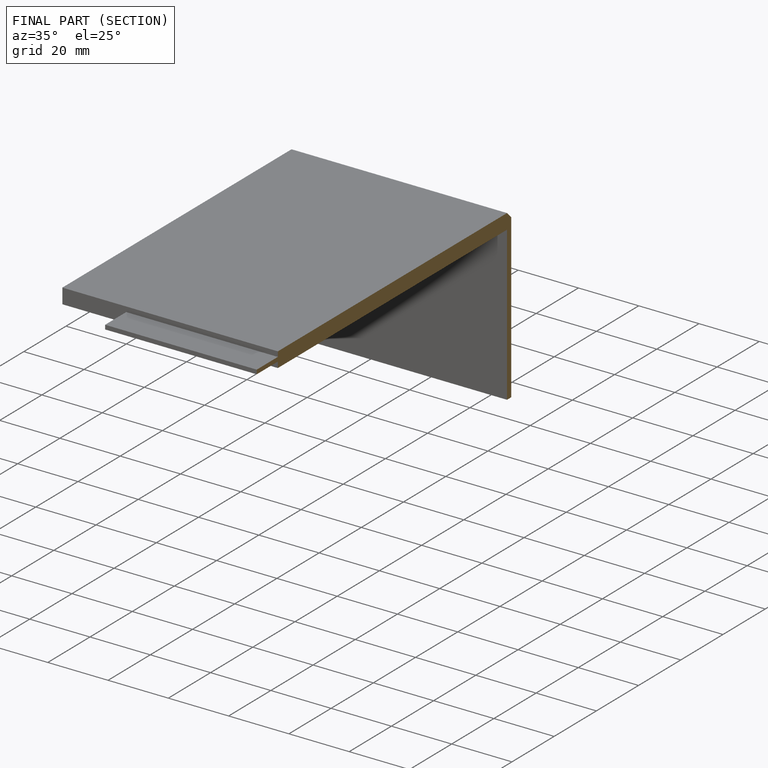
[diagram: finished part — half-section view (interior)]
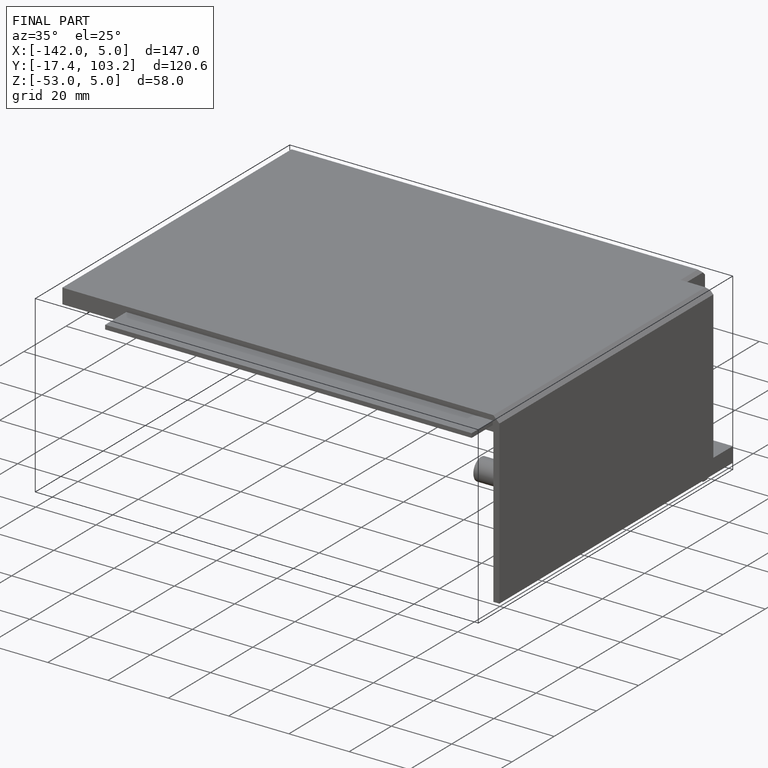
[diagram: finished part — iso view with bounding-box wireframe]
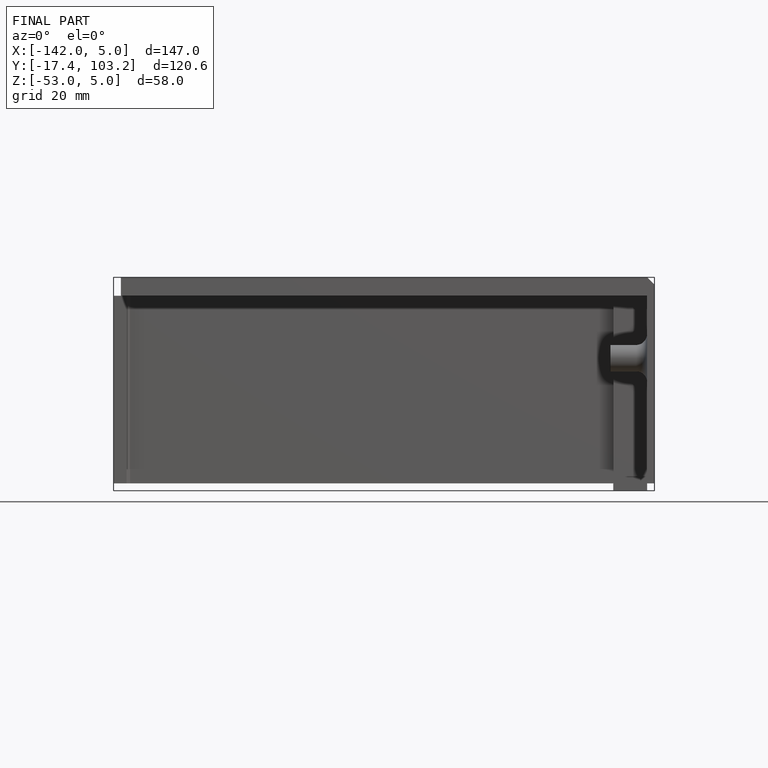
[diagram: finished part — front view with bounding-box wireframe]
